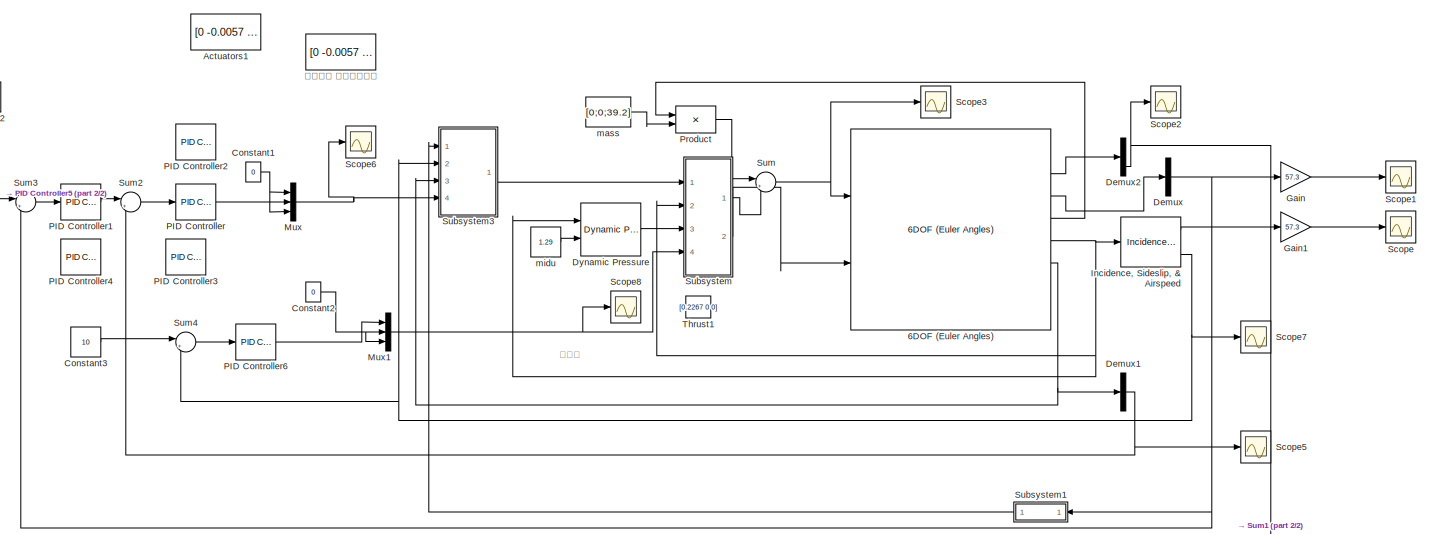
[diagram: root canvas - part 1/2, most of the canvas]
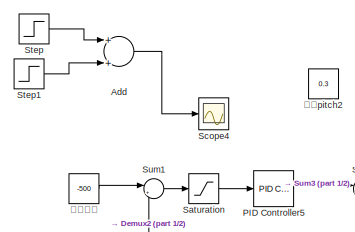
[diagram: root canvas - part 2/2, top left region]
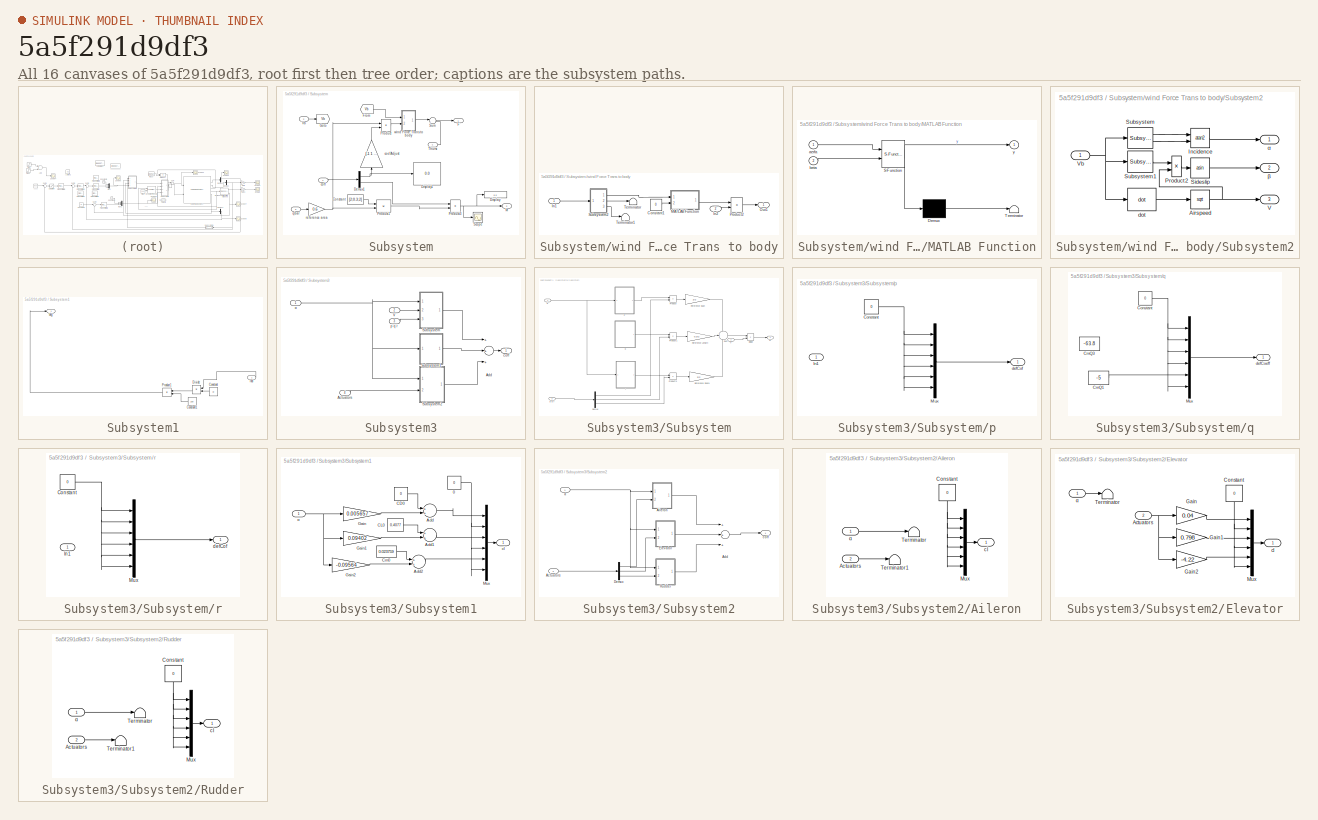
[diagram: thumbnail index - all 16 canvases of the model, root first then tree order]
MODEL slx_5a5f291d9df3
KIND model
CONFIG AbsTol = auto
CONFIG FixedStep = auto
CONFIG MaxStep = auto
CONFIG MinStep = auto
CONFIG RelTol = 1e-3
CONFIG SampleTimeConstraint = Unconstrained
CONFIG Solver = ode45
CONFIG SolverMode = Auto
CONFIG SolverName = ode45
CONFIG StartTime = 0.0
CONFIG StopTime = 1000
BLOCK [Reference] 6DOF (Euler Angles)  REF=aerolib6dof2/6DOF (Euler Angles)
  Ports = [2, 8]
  SourceBlock = aerolib6dof2/6DOF (Euler Angles)
  SourceType = 6DOF EoM (Body Axis)
BLOCK [Constant] Actuators1
  Value = [0 -0.0057 0]
BLOCK [Sum] Add
  InputSameDT = off
  OutDataTypeStr = Inherit: Inherit via internal rule
  Ports = [2, 1]
  SaturateOnIntegerOverflow = off
BLOCK [Constant] Constant1
  Value = 0
BLOCK [Constant] Constant2
  Value = 0
BLOCK [Constant] Constant3
  Value = 10
BLOCK [Demux] Demux
  DisplayOption = bar
  Outputs = 3
  Ports = [1, 3]
BLOCK [Demux] Demux1
  DisplayOption = bar
  Outputs = 3
  Ports = [1, 3]
BLOCK [Demux] Demux2
  DisplayOption = bar
  Outputs = 3
  Ports = [1, 3]
BLOCK [Reference] Dynamic Pressure  REF=aerolibasang/Dynamic Pressure
  Ports = [2, 1]
  SourceBlock = aerolibasang/Dynamic Pressure
  SourceType = Dynamic Pressure
BLOCK [Gain] Gain
  Commented = through
  Gain = 57.3
  OutDataTypeStr = Inherit: Inherit via internal rule
  ParamDataTypeStr = Inherit: Inherit via internal rule
  SaturateOnIntegerOverflow = off
BLOCK [Gain] Gain1
  Gain = 57.3
  OutDataTypeStr = Inherit: Inherit via internal rule
  ParamDataTypeStr = Inherit: Inherit via internal rule
  SaturateOnIntegerOverflow = off
BLOCK [Reference] Incidence, Sideslip, & Airspeed  REF=aerolibasang/Incidence, Sideslip,
& Airspeed
  Ports = [1, 3]
  SourceBlock = aerolibasang/Incidence, Sideslip,\n& Airspeed
  SourceType = Incidence,Sideslip,&Airspeed
BLOCK [Mux] Mux
  DisplayOption = bar
  Inputs = 3
  Ports = [3, 1]
BLOCK [Mux] Mux1
  DisplayOption = bar
  Inputs = 3
  Ports = [3, 1]
BLOCK [Reference] PID Controller  REF=simulink/Continuous/PID Controller
  Ports = [1, 1]
  SourceBlock = simulink/Continuous/PID Controller
  SourceType = PID 1dof
BLOCK [Reference] PID Controller1  REF=simulink/Continuous/PID Controller
  Ports = [1, 1]
  SourceBlock = simulink/Continuous/PID Controller
  SourceType = PID 1dof
BLOCK [Reference] PID Controller2  REF=simulink/Continuous/PID Controller
  Ports = [1, 1]
  SourceBlock = simulink/Continuous/PID Controller
  SourceType = PID 1dof
BLOCK [Reference] PID Controller3  REF=simulink/Continuous/PID Controller
  Ports = [1, 1]
  SourceBlock = simulink/Continuous/PID Controller
  SourceType = PID 1dof
BLOCK [Reference] PID Controller4  REF=simulink/Continuous/PID Controller
  Ports = [1, 1]
  SourceBlock = simulink/Continuous/PID Controller
  SourceType = PID 1dof
BLOCK [Reference] PID Controller5  REF=simulink/Continuous/PID Controller
  Ports = [1, 1]
  SourceBlock = simulink/Continuous/PID Controller
  SourceType = PID 1dof
BLOCK [Reference] PID Controller6  REF=simulink/Continuous/PID Controller
  Ports = [1, 1]
  SourceBlock = simulink/Continuous/PID Controller
  SourceType = PID 1dof
BLOCK [Product] Product
  InputSameDT = off
  Multiplication = Matrix(*)
  OutDataTypeStr = Inherit: Inherit via internal rule
  Ports = [2, 1]
  RndMeth = Floor
  SaturateOnIntegerOverflow = off
BLOCK [Saturate] Saturation
  InputPortMap = u0
  LowerLimit = -10
  Ports = [1, 1]
  UpperLimit = 10
BLOCK [Scope] Scope
  Ports = [1]
  ScopeSpecificationString = Simulink.scopes.TimeScopeBlockCfg('CurrentConfiguration', extmgr.ConfigurationSet(extmgr.Configuration('Core','General UI',true),extmgr.Configuration('Core','Source UI',true),extmgr.Configuration('Sources','WiredSimulink',true,'DataLoggingSaveFormat','Array','DataLoggingDecimation','1','DataLoggingDecimateData',true),extmgr.Configuration('Visuals','Time Domain',true,'SerializedDisplays',{struct('M...<+1651ch>
BLOCK [Scope] Scope1
  Ports = [1]
  ScopeSpecificationString = Simulink.scopes.TimeScopeBlockCfg('CurrentConfiguration', extmgr.ConfigurationSet(extmgr.Configuration('Core','General UI',true),extmgr.Configuration('Core','Source UI',true),extmgr.Configuration('Sources','WiredSimulink',true,'DataLoggingVariableName','ScopeData1','DataLoggingSaveFormat','Array','DataLoggingDecimation','1','DataLoggingDecimateData',true),extmgr.Configuration('Visuals','Time Domai...<+1684ch>
BLOCK [Scope] Scope2
  Ports = [1]
  ScopeSpecificationString = Simulink.scopes.TimeScopeBlockCfg('CurrentConfiguration', extmgr.ConfigurationSet(extmgr.Configuration('Core','General UI',true),extmgr.Configuration('Core','Source UI',true),extmgr.Configuration('Sources','WiredSimulink',true,'DataLoggingVariableName','ScopeData2','DataLoggingSaveFormat','Array','DataLoggingDecimation','1','DataLoggingDecimateData',true),extmgr.Configuration('Visuals','Time Domai...<+1740ch>
BLOCK [Scope] Scope3
  Ports = [1]
  ScopeSpecificationString = Simulink.scopes.TimeScopeBlockCfg('CurrentConfiguration', extmgr.ConfigurationSet(extmgr.Configuration('Core','General UI',true),extmgr.Configuration('Core','Source UI',true),extmgr.Configuration('Sources','WiredSimulink',true,'DataLoggingVariableName','ScopeData3','DataLoggingSaveFormat','Array','DataLoggingDecimation','1','DataLoggingDecimateData',true),extmgr.Configuration('Visuals','Time Domai...<+1692ch>
BLOCK [Scope] Scope4
  Ports = [1]
  ScopeSpecificationString = C++SS(StrPVP('Location','[347, 233, 812, 511]'),StrPVP('Open','off'),MxPVP('AxesTitles',24,'struct(''axes1'',''%<SignalLabel>'')'),MxPVP('ScopeGraphics',28,'struct(''FigureColor'',''[0.5 0.5 0.5]'',''AxesColor'',''[0 0 0]'',''AxesTickColor'',''[1 1 1]'',''LineColors'',''[1 1 0;1 0 1;0 1 1;1 0 0;0 1 0;0 0 1]'',''LineStyles'',''-|-|-|-|-|-'',''LineWidths'',''[0.5 0.5 0.5 0.5 0.5 0.5]'',''MarkerStyle...<+268ch>
BLOCK [Scope] Scope5
  Ports = [1]
  ScopeSpecificationString = Simulink.scopes.TimeScopeBlockCfg('CurrentConfiguration', extmgr.ConfigurationSet(extmgr.Configuration('Core','General UI',true),extmgr.Configuration('Core','Source UI',true),extmgr.Configuration('Sources','WiredSimulink',true,'DataLoggingSaveFormat','Array','DataLoggingDecimation','1','DataLoggingDecimateData',true,'DataLoggingVariableName','ScopeData6'),extmgr.Configuration('Visuals','Time Domai...<+1677ch>
BLOCK [Scope] Scope6
  Ports = [1]
  ScopeSpecificationString = Simulink.scopes.TimeScopeBlockCfg('CurrentConfiguration', extmgr.ConfigurationSet(extmgr.Configuration('Core','General UI',true),extmgr.Configuration('Core','Source UI',true),extmgr.Configuration('Sources','WiredSimulink',true,'DataLoggingVariableName','ScopeData7','DataLoggingSaveFormat','Array','DataLoggingDecimation','1','DataLoggingDecimateData',true),extmgr.Configuration('Visuals','Time Domai...<+1709ch>
BLOCK [Scope] Scope7
  Ports = [1]
  ScopeSpecificationString = Simulink.scopes.TimeScopeBlockCfg('CurrentConfiguration', extmgr.ConfigurationSet(extmgr.Configuration('Core','General UI',true),extmgr.Configuration('Core','Source UI',true),extmgr.Configuration('Sources','WiredSimulink',true,'DataLoggingSaveFormat','Array','DataLoggingDecimation','1','DataLoggingDecimateData',true,'DataLoggingVariableName','ScopeData8'),extmgr.Configuration('Visuals','Time Domai...<+1708ch>
BLOCK [Scope] Scope8
  Ports = [1]
  ScopeSpecificationString = Simulink.scopes.TimeScopeBlockCfg('CurrentConfiguration', extmgr.ConfigurationSet(extmgr.Configuration('Core','General UI',true),extmgr.Configuration('Core','Source UI',true),extmgr.Configuration('Sources','WiredSimulink',true,'DataLoggingVariableName','ScopeData1','DataLoggingSaveFormat','Array','DataLoggingDecimation','1','DataLoggingDecimateData',true),extmgr.Configuration('Visuals','Time Domai...<+1716ch>
BLOCK [Step] Step
  After = 0.1
  SampleTime = 0
  Time = 2
BLOCK [Step] Step1
  After = -0.1
  SampleTime = 0
  Time = 2.1
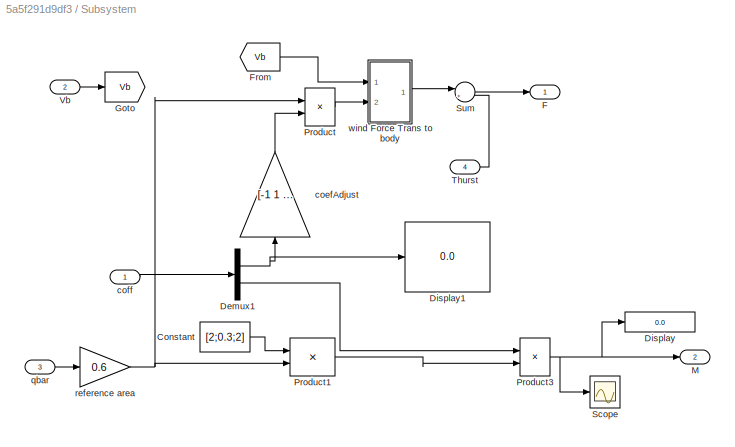
BLOCK [SubSystem] Subsystem
  Ports = [4, 2]
  RequestExecContextInheritance = off
  Variant = off
BLOCK [Constant] Subsystem/Constant
  Value = [2;0.3;2]
BLOCK [Demux] Subsystem/Demux1
  Outputs = [3,3]
  Ports = [1, 2]
BLOCK [Display] Subsystem/Display
  Decimation = 1
  Ports = [1]
BLOCK [Display] Subsystem/Display1
  Decimation = 1
  Ports = [1]
BLOCK [Outport] Subsystem/F
  IconDisplay = Port number
BLOCK [From] Subsystem/From
  CloseFcn = tagdialog Close
  GotoTag = Vb
BLOCK [Goto] Subsystem/Goto
  GotoTag = Vb
BLOCK [Outport] Subsystem/M
  IconDisplay = Port number
  Port = 2
BLOCK [Product] Subsystem/Product
  Ports = [2, 1]
  RndMeth = Floor
BLOCK [Product] Subsystem/Product1
  Ports = [2, 1]
  RndMeth = Floor
BLOCK [Product] Subsystem/Product3
  Ports = [2, 1]
  RndMeth = Floor
BLOCK [Scope] Subsystem/Scope
  Ports = [1]
  ScopeSpecificationString = C++SS(StrPVP('Location','[341, 288, 1096, 622]'),StrPVP('Open','off'),MxPVP('AxesTitles',24,'struct(''axes1'',''%<SignalLabel>'')'),MxPVP('ScopeGraphics',28,'struct(''FigureColor'',''[0.5 0.5 0.5]'',''AxesColor'',''[0 0 0]'',''AxesTickColor'',''[1 1 1]'',''LineColors'',''[1 1 0;1 0 1;0 1 1;1 0 0;0 1 0;0 0 1]'',''LineStyles'',''-|-|-|-|-|-'',''LineWidths'',''[0.5 0.5 0.5 0.5 0.5 0.5]'',''MarkerStyl...<+268ch>
BLOCK [Sum] Subsystem/Sum
  IconShape = round
  InputSameDT = off
  Inputs = |++
  OutDataTypeStr = Inherit: Inherit via internal rule
  Ports = [2, 1]
  SaturateOnIntegerOverflow = off
BLOCK [Inport] Subsystem/Thurst
  IconDisplay = Port number
  Port = 4
BLOCK [Inport] Subsystem/Vb
  IconDisplay = Port number
  Port = 2
BLOCK [Gain] Subsystem/coefAdjust
  Gain = [-1  1  -1]
  OutDataTypeStr = Inherit: Inherit via internal rule
  ParamDataTypeStr = Inherit: Inherit via internal rule
  SaturateOnIntegerOverflow = off
BLOCK [Inport] Subsystem/coff
  IconDisplay = Port number
BLOCK [Inport] Subsystem/qbar
  IconDisplay = Port number
  Port = 3
BLOCK [Gain] Subsystem/reference area
  Gain = 0.6
BLOCK [SubSystem] Subsystem/wind Force Trans to body
  Ports = [2, 1]
  RequestExecContextInheritance = off
  Variant = off
BLOCK [Constant] Subsystem/wind Force Trans to body/Constant1
  Value = 0
BLOCK [Inport] Subsystem/wind Force Trans to body/In1
  IconDisplay = Port number
BLOCK [Inport] Subsystem/wind Force Trans to body/In2
  IconDisplay = Port number
  Port = 2
BLOCK [SubSystem] Subsystem/wind Force Trans to body/MATLAB Function
  ErrorFcn = Stateflow.Translate.translate
  PermitHierarchicalResolution = ExplicitOnly
  Ports = [2, 1]
  RequestExecContextInheritance = off
  SFBlockType = MATLAB Function
  TreatAsAtomicUnit = on
  Variant = off
BLOCK [Demux] Subsystem/wind Force Trans to body/MATLAB Function/ Demux 
  Outputs = 1
  Ports = [1, 1]
BLOCK [S-Function] Subsystem/wind Force Trans to body/MATLAB Function/ SFunction 
  EnableBusSupport = on
  FunctionName = sf_sfun
  PortCounts = [2 2]
  Ports = [2, 2]
  SFunctionDeploymentMode = off
  Tag = Stateflow S-Function aircraft_fixd 2
BLOCK [Terminator] Subsystem/wind Force Trans to body/MATLAB Function/ Terminator 
BLOCK [Inport] Subsystem/wind Force Trans to body/MATLAB Function/aerfa
  IconDisplay = Port number
BLOCK [Inport] Subsystem/wind Force Trans to body/MATLAB Function/beta
  IconDisplay = Port number
  Port = 2
BLOCK [Outport] Subsystem/wind Force Trans to body/MATLAB Function/y
  IconDisplay = Port number
BLOCK [Outport] Subsystem/wind Force Trans to body/Out1
  IconDisplay = Port number
BLOCK [Product] Subsystem/wind Force Trans to body/Product2
  Multiplication = Matrix(*)
  Ports = [2, 1]
  RndMeth = Floor
BLOCK [SubSystem] Subsystem/wind Force Trans to body/Subsystem2
  Ports = [1, 3]
  RequestExecContextInheritance = off
  Variant = off
BLOCK [Sqrt] Subsystem/wind Force Trans to body/Subsystem2/Airspeed
  AlgorithmType = Newton-Raphson
BLOCK [Trigonometry] Subsystem/wind Force Trans to body/Subsystem2/Incidence
  Operator = atan2
  Ports = [2, 1]
BLOCK [Product] Subsystem/wind Force Trans to body/Subsystem2/Product2
  InputSameDT = off
  Inputs = */
  Ports = [2, 1]
  RndMeth = Floor
BLOCK [Trigonometry] Subsystem/wind Force Trans to body/Subsystem2/Sideslip
  Operator = asin
  Ports = [1, 1]
BLOCK [Reference] Subsystem/wind Force Trans to body/Subsystem2/Subsystem  REF=aerolibasang/Incidence, Sideslip,
& Airspeed/Subsystem
  Ports = [1, 2]
  SourceBlock = aerolibasang/Incidence, Sideslip,\n& Airspeed/Subsystem
  SourceType = SubSystem
BLOCK [Reference] Subsystem/wind Force Trans to body/Subsystem2/Subsystem1  REF=aerolibasang/Incidence, Sideslip,
& Airspeed/Subsystem1
  Ports = [1, 1]
  SourceBlock = aerolibasang/Incidence, Sideslip,\n& Airspeed/Subsystem1
  SourceType = SubSystem
BLOCK [Outport] Subsystem/wind Force Trans to body/Subsystem2/V
  IconDisplay = Port number
  Port = 3
BLOCK [Inport] Subsystem/wind Force Trans to body/Subsystem2/Vb
  IconDisplay = Port number
BLOCK [Reference] Subsystem/wind Force Trans to body/Subsystem2/dot  REF=aerolibasang/Incidence, Sideslip,
& Airspeed/dot
  Ports = [1, 1]
  SourceBlock = aerolibasang/Incidence, Sideslip,\n& Airspeed/dot
  SourceType = SubSystem
BLOCK [Outport] Subsystem/wind Force Trans to body/Subsystem2/α
  IconDisplay = Port number
BLOCK [Outport] Subsystem/wind Force Trans to body/Subsystem2/β
  IconDisplay = Port number
  Port = 2
BLOCK [Terminator] Subsystem/wind Force Trans to body/Terminator
BLOCK [Terminator] Subsystem/wind Force Trans to body/Terminator1
BLOCK [SubSystem] Subsystem1
  Ports = [1, 1]
  RequestExecContextInheritance = off
  Variant = off
BLOCK [Constant] Subsystem1/Constant
  Value = pi
BLOCK [Constant] Subsystem1/Constant1
  Value = 180
BLOCK [Product] Subsystem1/Divide
  InputSameDT = off
  Inputs = */
  OutDataTypeStr = Inherit: Inherit via internal rule
  Ports = [2, 1]
  RndMeth = Floor
  SaturateOnIntegerOverflow = off
BLOCK [Product] Subsystem1/Product1
  InputSameDT = off
  OutDataTypeStr = Inherit: Inherit via internal rule
  Ports = [2, 1]
  RndMeth = Floor
  SaturateOnIntegerOverflow = off
BLOCK [Outport] Subsystem1/deg
  IconDisplay = Port number
BLOCK [Inport] Subsystem1/rad
  IconDisplay = Port number
BLOCK [SubSystem] Subsystem3
  Ports = [4, 1]
  RequestExecContextInheritance = off
  Variant = off
BLOCK [Inport] Subsystem3/Actuators
  IconDisplay = Port number
  Port = 4
BLOCK [Sum] Subsystem3/Add
  InputSameDT = off
  Inputs = +++
  OutDataTypeStr = Inherit: Inherit via internal rule
  Ports = [3, 1]
  SaturateOnIntegerOverflow = off
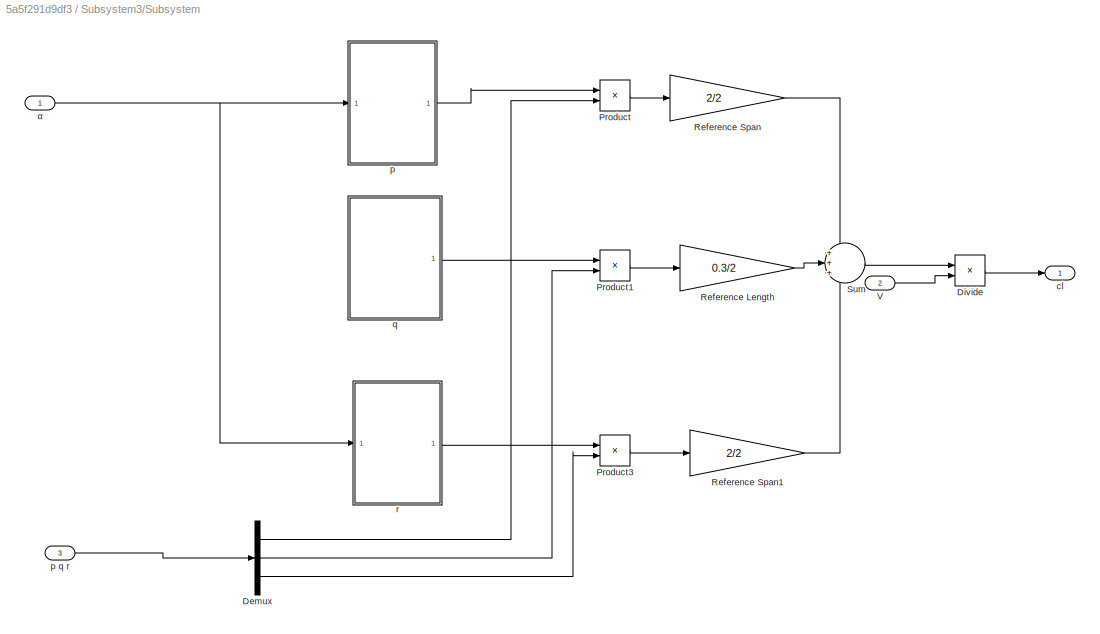
BLOCK [SubSystem] Subsystem3/Subsystem
  Ports = [3, 1]
  RequestExecContextInheritance = off
  Variant = off
BLOCK [Demux] Subsystem3/Subsystem/Demux
  DisplayOption = bar
  Outputs = 3
  Ports = [1, 3]
BLOCK [Product] Subsystem3/Subsystem/Divide
  InputSameDT = off
  Inputs = */
  OutDataTypeStr = Inherit: Inherit via internal rule
  Ports = [2, 1]
  RndMeth = Floor
  SaturateOnIntegerOverflow = off
BLOCK [Product] Subsystem3/Subsystem/Product
  InputSameDT = off
  OutDataTypeStr = Inherit: Inherit via internal rule
  Ports = [2, 1]
  RndMeth = Floor
  SaturateOnIntegerOverflow = off
BLOCK [Product] Subsystem3/Subsystem/Product1
  InputSameDT = off
  OutDataTypeStr = Inherit: Inherit via internal rule
  Ports = [2, 1]
  RndMeth = Floor
  SaturateOnIntegerOverflow = off
BLOCK [Product] Subsystem3/Subsystem/Product3
  InputSameDT = off
  OutDataTypeStr = Inherit: Inherit via internal rule
  Ports = [2, 1]
  RndMeth = Floor
  SaturateOnIntegerOverflow = off
BLOCK [Gain] Subsystem3/Subsystem/Reference Length
  Gain = 0.3/2
  OutDataTypeStr = Inherit: Inherit via internal rule
  ParamDataTypeStr = Inherit: Inherit via internal rule
  SaturateOnIntegerOverflow = off
BLOCK [Gain] Subsystem3/Subsystem/Reference Span
  Gain = 2/2
  OutDataTypeStr = Inherit: Inherit via internal rule
  ParamDataTypeStr = Inherit: Inherit via internal rule
  SaturateOnIntegerOverflow = off
BLOCK [Gain] Subsystem3/Subsystem/Reference Span1
  Gain = 2/2
  OutDataTypeStr = Inherit: Inherit via internal rule
  ParamDataTypeStr = Inherit: Inherit via internal rule
  SaturateOnIntegerOverflow = off
BLOCK [Sum] Subsystem3/Subsystem/Sum
  IconShape = round
  InputSameDT = off
  Inputs = +++
  OutDataTypeStr = Inherit: Inherit via internal rule
  Ports = [3, 1]
  SaturateOnIntegerOverflow = off
BLOCK [Inport] Subsystem3/Subsystem/V
  IconDisplay = Port number
  Port = 2
BLOCK [Outport] Subsystem3/Subsystem/cl
  IconDisplay = Port number
BLOCK [SubSystem] Subsystem3/Subsystem/p
  Ports = [1, 1]
  RequestExecContextInheritance = off
  Variant = off
BLOCK [Inport] Subsystem3/Subsystem/p q r
  IconDisplay = Port number
  Port = 3
BLOCK [Constant] Subsystem3/Subsystem/p/Constant
  Value = 0
BLOCK [Inport] Subsystem3/Subsystem/p/In1
  IconDisplay = Port number
BLOCK [Mux] Subsystem3/Subsystem/p/Mux
  DisplayOption = bar
  Inputs = 6
  Ports = [6, 1]
BLOCK [Outport] Subsystem3/Subsystem/p/defCof
  IconDisplay = Port number
BLOCK [SubSystem] Subsystem3/Subsystem/q
  Ports = [0, 1]
  RequestExecContextInheritance = off
  Variant = off
BLOCK [Constant] Subsystem3/Subsystem/q/CmQ1
  Value = -5
BLOCK [Constant] Subsystem3/Subsystem/q/CmQ3
  Value = -63.8
BLOCK [Constant] Subsystem3/Subsystem/q/Constant
  Value = 0
BLOCK [Mux] Subsystem3/Subsystem/q/Mux
  DisplayOption = bar
  Inputs = 6
  Ports = [6, 1]
BLOCK [Outport] Subsystem3/Subsystem/q/defCoeff
  IconDisplay = Port number
BLOCK [SubSystem] Subsystem3/Subsystem/r
  Ports = [1, 1]
  RequestExecContextInheritance = off
  Variant = off
BLOCK [Constant] Subsystem3/Subsystem/r/Constant
  Value = 0
BLOCK [Inport] Subsystem3/Subsystem/r/In1
  IconDisplay = Port number
BLOCK [Mux] Subsystem3/Subsystem/r/Mux
  DisplayOption = bar
  Inputs = 6
  Ports = [6, 1]
BLOCK [Outport] Subsystem3/Subsystem/r/defCof
  IconDisplay = Port number
BLOCK [Inport] Subsystem3/Subsystem/α
  IconDisplay = Port number
BLOCK [SubSystem] Subsystem3/Subsystem1
  Ports = [1, 1]
  RequestExecContextInheritance = off
  Variant = off
BLOCK [Constant] Subsystem3/Subsystem1/0
  Value = 0
BLOCK [Sum] Subsystem3/Subsystem1/Add
  InputSameDT = off
  OutDataTypeStr = Inherit: Inherit via internal rule
  Ports = [2, 1]
  SaturateOnIntegerOverflow = off
BLOCK [Sum] Subsystem3/Subsystem1/Add1
  InputSameDT = off
  OutDataTypeStr = Inherit: Inherit via internal rule
  Ports = [2, 1]
  SaturateOnIntegerOverflow = off
BLOCK [Sum] Subsystem3/Subsystem1/Add2
  InputSameDT = off
  OutDataTypeStr = Inherit: Inherit via internal rule
  Ports = [2, 1]
  SaturateOnIntegerOverflow = off
BLOCK [Constant] Subsystem3/Subsystem1/CD0
  Value = 0
BLOCK [Constant] Subsystem3/Subsystem1/CL0
  Value = 0.4077
BLOCK [Constant] Subsystem3/Subsystem1/Cm0
  Value = 0.023759
BLOCK [Gain] Subsystem3/Subsystem1/Gain
  Gain = 0.005657
  OutDataTypeStr = Inherit: Inherit via internal rule
  ParamDataTypeStr = Inherit: Inherit via internal rule
  SaturateOnIntegerOverflow = off
BLOCK [Gain] Subsystem3/Subsystem1/Gain1
  Gain = 0.09402
  OutDataTypeStr = Inherit: Inherit via internal rule
  ParamDataTypeStr = Inherit: Inherit via internal rule
  SaturateOnIntegerOverflow = off
BLOCK [Gain] Subsystem3/Subsystem1/Gain2
  Gain = -0.09564
  OutDataTypeStr = Inherit: Inherit via internal rule
  ParamDataTypeStr = Inherit: Inherit via internal rule
  SaturateOnIntegerOverflow = off
BLOCK [Mux] Subsystem3/Subsystem1/Mux
  DisplayOption = bar
  Inputs = 6
  Ports = [6, 1]
BLOCK [Outport] Subsystem3/Subsystem1/cl
  IconDisplay = Port number
BLOCK [Inport] Subsystem3/Subsystem1/α
  IconDisplay = Port number
BLOCK [SubSystem] Subsystem3/Subsystem2
  Ports = [2, 1]
  RequestExecContextInheritance = off
  Variant = off
BLOCK [Inport] Subsystem3/Subsystem2/Actuators
  IconDisplay = Port number
  Port = 2
BLOCK [Sum] Subsystem3/Subsystem2/Add
  InputSameDT = off
  Inputs = +++
  OutDataTypeStr = Inherit: Inherit via internal rule
  Ports = [3, 1]
  SaturateOnIntegerOverflow = off
BLOCK [SubSystem] Subsystem3/Subsystem2/Aileron
  Ports = [2, 1]
  RequestExecContextInheritance = off
  Variant = off
BLOCK [Inport] Subsystem3/Subsystem2/Aileron/Actuators
  IconDisplay = Port number
  Port = 2
BLOCK [Constant] Subsystem3/Subsystem2/Aileron/Constant
  Value = 0
BLOCK [Mux] Subsystem3/Subsystem2/Aileron/Mux
  DisplayOption = bar
  Inputs = 6
  Ports = [6, 1]
BLOCK [Terminator] Subsystem3/Subsystem2/Aileron/Terminator
BLOCK [Terminator] Subsystem3/Subsystem2/Aileron/Terminator1
BLOCK [Outport] Subsystem3/Subsystem2/Aileron/cl
  IconDisplay = Port number
BLOCK [Inport] Subsystem3/Subsystem2/Aileron/α
  IconDisplay = Port number
BLOCK [Demux] Subsystem3/Subsystem2/Demux
  DisplayOption = bar
  Outputs = 3
  Ports = [1, 3]
BLOCK [SubSystem] Subsystem3/Subsystem2/Elevator
  Ports = [2, 1]
  RequestExecContextInheritance = off
  Variant = off
BLOCK [Inport] Subsystem3/Subsystem2/Elevator/Actuators
  IconDisplay = Port number
  Port = 2
BLOCK [Constant] Subsystem3/Subsystem2/Elevator/Constant
  Value = 0
BLOCK [Gain] Subsystem3/Subsystem2/Elevator/Gain
  Gain = 0.04
  OutDataTypeStr = Inherit: Inherit via internal rule
  ParamDataTypeStr = Inherit: Inherit via internal rule
  SaturateOnIntegerOverflow = off
BLOCK [Gain] Subsystem3/Subsystem2/Elevator/Gain1
  Gain = 0.798
  OutDataTypeStr = Inherit: Inherit via internal rule
  ParamDataTypeStr = Inherit: Inherit via internal rule
  SaturateOnIntegerOverflow = off
BLOCK [Gain] Subsystem3/Subsystem2/Elevator/Gain2
  Gain = -4.22
  OutDataTypeStr = Inherit: Inherit via internal rule
  ParamDataTypeStr = Inherit: Inherit via internal rule
  SaturateOnIntegerOverflow = off
BLOCK [Mux] Subsystem3/Subsystem2/Elevator/Mux
  DisplayOption = bar
  Inputs = 6
  Ports = [6, 1]
BLOCK [Terminator] Subsystem3/Subsystem2/Elevator/Terminator
BLOCK [Outport] Subsystem3/Subsystem2/Elevator/cl
  IconDisplay = Port number
BLOCK [Inport] Subsystem3/Subsystem2/Elevator/α
  IconDisplay = Port number
BLOCK [SubSystem] Subsystem3/Subsystem2/Rudder
  Ports = [2, 1]
  RequestExecContextInheritance = off
  Variant = off
BLOCK [Inport] Subsystem3/Subsystem2/Rudder/Actuators
  IconDisplay = Port number
  Port = 2
BLOCK [Constant] Subsystem3/Subsystem2/Rudder/Constant
  Value = 0
BLOCK [Mux] Subsystem3/Subsystem2/Rudder/Mux
  DisplayOption = bar
  Inputs = 6
  Ports = [6, 1]
BLOCK [Terminator] Subsystem3/Subsystem2/Rudder/Terminator
BLOCK [Terminator] Subsystem3/Subsystem2/Rudder/Terminator1
BLOCK [Outport] Subsystem3/Subsystem2/Rudder/cl
  IconDisplay = Port number
BLOCK [Inport] Subsystem3/Subsystem2/Rudder/α
  IconDisplay = Port number
BLOCK [Outport] Subsystem3/Subsystem2/coff
  IconDisplay = Port number
BLOCK [Inport] Subsystem3/Subsystem2/α
  IconDisplay = Port number
BLOCK [Inport] Subsystem3/V
  IconDisplay = Port number
  Port = 2
BLOCK [Outport] Subsystem3/coff
  IconDisplay = Port number
BLOCK [Inport] Subsystem3/p q r
  IconDisplay = Port number
  Port = 3
BLOCK [Inport] Subsystem3/α
  IconDisplay = Port number
BLOCK [Sum] Sum
  IconShape = round
  InputSameDT = off
  Inputs = |++
  OutDataTypeStr = Inherit: Inherit via internal rule
  Ports = [2, 1]
  SaturateOnIntegerOverflow = off
BLOCK [Sum] Sum1
  IconShape = round
  InputSameDT = off
  Inputs = |+-
  OutDataTypeStr = Inherit: Inherit via internal rule
  Ports = [2, 1]
  SaturateOnIntegerOverflow = off
BLOCK [Sum] Sum2
  IconShape = round
  InputSameDT = off
  Inputs = |+-
  OutDataTypeStr = Inherit: Inherit via internal rule
  Ports = [2, 1]
  SaturateOnIntegerOverflow = off
BLOCK [Sum] Sum3
  IconShape = round
  InputSameDT = off
  Inputs = |+-
  OutDataTypeStr = Inherit: Inherit via internal rule
  Ports = [2, 1]
  SaturateOnIntegerOverflow = off
BLOCK [Sum] Sum4
  IconShape = round
  InputSameDT = off
  Inputs = |+-
  OutDataTypeStr = Inherit: Inherit via internal rule
  Ports = [2, 1]
  SaturateOnIntegerOverflow = off
BLOCK [Constant] Thrust1
  Value = [0.2267 0 0]
BLOCK [Constant] mass
  Value = [0;0;39.2]
BLOCK [Constant] midu
  Value = 1.29
BLOCK [Constant] 平衡舵量 副翼升降偏航
  Value = [0 -0.0057 0]
BLOCK [Constant] 期望pitch2
  Value = 0.3
BLOCK [Constant] 期望高度
  Value = -500
ANNOTATION (root): 加推力
LINE 6DOF (Euler Angles):2 -> Demux2:1
LINE 6DOF (Euler Angles):3 -> Demux:1
LINE 6DOF (Euler Angles):4 -> Product:1
NET 6DOF (Euler Angles):5 -> Dynamic Pressure:1, Incidence, Sideslip, & Airspeed:1, Subsystem:2
NET 6DOF (Euler Angles):6 -> Demux1:1, Subsystem3:3
LINE Add:1 -> Scope4:1
NET Constant1:1 -> Mux:1, Mux:3
NET Constant2:1 -> Mux1:2, Mux1:3
LINE Constant3:1 -> Sum4:1
NET Demux1:2 -> Scope5:1, Sum2:2
NET Demux2:3 -> Scope2:1, Sum1:2
NET Demux:2 -> Gain:1, Subsystem1:1, Sum3:2
LINE Dynamic Pressure:1 -> Subsystem:3
LINE Gain1:1 -> Scope:1
LINE Gain:1 -> Scope1:1
LINE Incidence, Sideslip, & Airspeed:1 -> Gain1:1
NET Incidence, Sideslip, & Airspeed:3 -> Scope7:1, Subsystem3:2, Sum4:2
NET Mux1:1 -> Scope8:1, Subsystem:4
NET Mux:1 -> Scope6:1, Subsystem3:4
LINE PID Controller1:1 -> Sum2:1
LINE PID Controller5:1 -> Sum3:1
LINE PID Controller6:1 -> Mux1:1
LINE PID Controller:1 -> Mux:2
LINE Product:1 -> Sum:1
LINE Saturation:1 -> PID Controller5:1
LINE Step1:1 -> Add:2
LINE Step:1 -> Add:1
LINE Subsystem/Constant:1 -> Subsystem/Product1:1
NET Subsystem/Demux1:1 -> Subsystem/Display1:1, Subsystem/coefAdjust:1
LINE Subsystem/Demux1:2 -> Subsystem/Product3:1
LINE Subsystem/From:1 -> Subsystem/wind Force Trans to body:1
LINE Subsystem/Product1:1 -> Subsystem/Product3:2
NET Subsystem/Product3:1 -> Subsystem/Display:1, Subsystem/M:1, Subsystem/Scope:1
LINE Subsystem/Product:1 -> Subsystem/wind Force Trans to body:2
LINE Subsystem/Sum:1 -> Subsystem/F:1
LINE Subsystem/Thurst:1 -> Subsystem/Sum:2
LINE Subsystem/Vb:1 -> Subsystem/Goto:1
LINE Subsystem/coefAdjust:1 -> Subsystem/Product:2
LINE Subsystem/coff:1 -> Subsystem/Demux1:1
LINE Subsystem/qbar:1 -> Subsystem/reference area:1
NET Subsystem/reference area:1 -> Subsystem/Product1:2, Subsystem/Product:1
LINE Subsystem/wind Force Trans to body/Constant1:1 -> Subsystem/wind Force Trans to body/MATLAB Function:2
LINE Subsystem/wind Force Trans to body/In1:1 -> Subsystem/wind Force Trans to body/Subsystem2:1
LINE Subsystem/wind Force Trans to body/In2:1 -> Subsystem/wind Force Trans to body/Product2:2
LINE Subsystem/wind Force Trans to body/MATLAB Function:1 -> Subsystem/wind Force Trans to body/Product2:1
LINE Subsystem/wind Force Trans to body/Product2:1 -> Subsystem/wind Force Trans to body/Out1:1
NET Subsystem/wind Force Trans to body/Subsystem2/Airspeed:1 -> Subsystem/wind Force Trans to body/Subsystem2/Product2:2, Subsystem/wind Force Trans to body/Subsystem2/V:1
LINE Subsystem/wind Force Trans to body/Subsystem2/Incidence:1 -> Subsystem/wind Force Trans to body/Subsystem2/α:1
LINE Subsystem/wind Force Trans to body/Subsystem2/Product2:1 -> Subsystem/wind Force Trans to body/Subsystem2/Sideslip:1
LINE Subsystem/wind Force Trans to body/Subsystem2/Sideslip:1 -> Subsystem/wind Force Trans to body/Subsystem2/β:1
LINE Subsystem/wind Force Trans to body/Subsystem2/Subsystem1:1 -> Subsystem/wind Force Trans to body/Subsystem2/Product2:1
LINE Subsystem/wind Force Trans to body/Subsystem2/Subsystem:1 -> Subsystem/wind Force Trans to body/Subsystem2/Incidence:1
LINE Subsystem/wind Force Trans to body/Subsystem2/Subsystem:2 -> Subsystem/wind Force Trans to body/Subsystem2/Incidence:2
NET Subsystem/wind Force Trans to body/Subsystem2/Vb:1 -> Subsystem/wind Force Trans to body/Subsystem2/Subsystem1:1, Subsystem/wind Force Trans to body/Subsystem2/Subsystem:1, Subsystem/wind Force Trans to body/Subsystem2/dot:1
LINE Subsystem/wind Force Trans to body/Subsystem2/dot:1 -> Subsystem/wind Force Trans to body/Subsystem2/Airspeed:1
LINE Subsystem/wind Force Trans to body/Subsystem2:1 -> Subsystem/wind Force Trans to body/MATLAB Function:1
LINE Subsystem/wind Force Trans to body/Subsystem2:2 -> Subsystem/wind Force Trans to body/Terminator:1
LINE Subsystem/wind Force Trans to body/Subsystem2:3 -> Subsystem/wind Force Trans to body/Terminator1:1
LINE Subsystem/wind Force Trans to body:1 -> Subsystem/Sum:1
LINE Subsystem1/Constant1:1 -> Subsystem1/Product1:2
LINE Subsystem1/Constant:1 -> Subsystem1/Divide:2
LINE Subsystem1/Divide:1 -> Subsystem1/Product1:1
LINE Subsystem1/Product1:1 -> Subsystem1/deg:1
LINE Subsystem1/rad:1 -> Subsystem1/Divide:1
LINE Subsystem1:1 -> Subsystem3:1
LINE Subsystem3/Actuators:1 -> Subsystem3/Subsystem2:2
LINE Subsystem3/Add:1 -> Subsystem3/coff:1
LINE Subsystem3/Subsystem/Demux:1 -> Subsystem3/Subsystem/Product:2
LINE Subsystem3/Subsystem/Demux:2 -> Subsystem3/Subsystem/Product1:2
LINE Subsystem3/Subsystem/Demux:3 -> Subsystem3/Subsystem/Product3:2
LINE Subsystem3/Subsystem/Divide:1 -> Subsystem3/Subsystem/cl:1
LINE Subsystem3/Subsystem/Product1:1 -> Subsystem3/Subsystem/Reference Length:1
LINE Subsystem3/Subsystem/Product3:1 -> Subsystem3/Subsystem/Reference Span1:1
LINE Subsystem3/Subsystem/Product:1 -> Subsystem3/Subsystem/Reference Span:1
LINE Subsystem3/Subsystem/Reference Length:1 -> Subsystem3/Subsystem/Sum:2
LINE Subsystem3/Subsystem/Reference Span1:1 -> Subsystem3/Subsystem/Sum:3
LINE Subsystem3/Subsystem/Reference Span:1 -> Subsystem3/Subsystem/Sum:1
LINE Subsystem3/Subsystem/Sum:1 -> Subsystem3/Subsystem/Divide:1
LINE Subsystem3/Subsystem/V:1 -> Subsystem3/Subsystem/Divide:2
LINE Subsystem3/Subsystem/p q r:1 -> Subsystem3/Subsystem/Demux:1
NET Subsystem3/Subsystem/p/Constant:1 -> Subsystem3/Subsystem/p/Mux:1, Subsystem3/Subsystem/p/Mux:2, Subsystem3/Subsystem/p/Mux:3, Subsystem3/Subsystem/p/Mux:4, Subsystem3/Subsystem/p/Mux:5, Subsystem3/Subsystem/p/Mux:6
LINE Subsystem3/Subsystem/p/Mux:1 -> Subsystem3/Subsystem/p/defCof:1
LINE Subsystem3/Subsystem/p:1 -> Subsystem3/Subsystem/Product:1
LINE Subsystem3/Subsystem/q/CmQ1:1 -> Subsystem3/Subsystem/q/Mux:5
NET Subsystem3/Subsystem/q/Constant:1 -> Subsystem3/Subsystem/q/Mux:1, Subsystem3/Subsystem/q/Mux:2, Subsystem3/Subsystem/q/Mux:3, Subsystem3/Subsystem/q/Mux:4, Subsystem3/Subsystem/q/Mux:6
LINE Subsystem3/Subsystem/q/Mux:1 -> Subsystem3/Subsystem/q/defCoeff:1
LINE Subsystem3/Subsystem/q:1 -> Subsystem3/Subsystem/Product1:1
NET Subsystem3/Subsystem/r/Constant:1 -> Subsystem3/Subsystem/r/Mux:1, Subsystem3/Subsystem/r/Mux:2, Subsystem3/Subsystem/r/Mux:3, Subsystem3/Subsystem/r/Mux:4, Subsystem3/Subsystem/r/Mux:5, Subsystem3/Subsystem/r/Mux:6
LINE Subsystem3/Subsystem/r/Mux:1 -> Subsystem3/Subsystem/r/defCof:1
LINE Subsystem3/Subsystem/r:1 -> Subsystem3/Subsystem/Product3:1
NET Subsystem3/Subsystem/α:1 -> Subsystem3/Subsystem/p:1, Subsystem3/Subsystem/r:1
NET Subsystem3/Subsystem1/0:1 -> Subsystem3/Subsystem1/Mux:2, Subsystem3/Subsystem1/Mux:4, Subsystem3/Subsystem1/Mux:6
LINE Subsystem3/Subsystem1/Add1:1 -> Subsystem3/Subsystem1/Mux:3
LINE Subsystem3/Subsystem1/Add2:1 -> Subsystem3/Subsystem1/Mux:5
LINE Subsystem3/Subsystem1/Add:1 -> Subsystem3/Subsystem1/Mux:1
LINE Subsystem3/Subsystem1/CD0:1 -> Subsystem3/Subsystem1/Add:1
LINE Subsystem3/Subsystem1/CL0:1 -> Subsystem3/Subsystem1/Add1:1
LINE Subsystem3/Subsystem1/Cm0:1 -> Subsystem3/Subsystem1/Add2:1
LINE Subsystem3/Subsystem1/Gain1:1 -> Subsystem3/Subsystem1/Add1:2
LINE Subsystem3/Subsystem1/Gain2:1 -> Subsystem3/Subsystem1/Add2:2
LINE Subsystem3/Subsystem1/Gain:1 -> Subsystem3/Subsystem1/Add:2
LINE Subsystem3/Subsystem1/Mux:1 -> Subsystem3/Subsystem1/cl:1
NET Subsystem3/Subsystem1/α:1 -> Subsystem3/Subsystem1/Gain1:1, Subsystem3/Subsystem1/Gain2:1, Subsystem3/Subsystem1/Gain:1
LINE Subsystem3/Subsystem1:1 -> Subsystem3/Add:2
LINE Subsystem3/Subsystem2/Actuators:1 -> Subsystem3/Subsystem2/Demux:1
LINE Subsystem3/Subsystem2/Add:1 -> Subsystem3/Subsystem2/coff:1
LINE Subsystem3/Subsystem2/Aileron/Actuators:1 -> Subsystem3/Subsystem2/Aileron/Terminator1:1
NET Subsystem3/Subsystem2/Aileron/Constant:1 -> Subsystem3/Subsystem2/Aileron/Mux:1, Subsystem3/Subsystem2/Aileron/Mux:2, Subsystem3/Subsystem2/Aileron/Mux:3, Subsystem3/Subsystem2/Aileron/Mux:4, Subsystem3/Subsystem2/Aileron/Mux:5, Subsystem3/Subsystem2/Aileron/Mux:6
LINE Subsystem3/Subsystem2/Aileron/Mux:1 -> Subsystem3/Subsystem2/Aileron/cl:1
LINE Subsystem3/Subsystem2/Aileron/α:1 -> Subsystem3/Subsystem2/Aileron/Terminator:1
LINE Subsystem3/Subsystem2/Aileron:1 -> Subsystem3/Subsystem2/Add:1
LINE Subsystem3/Subsystem2/Demux:1 -> Subsystem3/Subsystem2/Aileron:2
LINE Subsystem3/Subsystem2/Demux:2 -> Subsystem3/Subsystem2/Elevator:2
LINE Subsystem3/Subsystem2/Demux:3 -> Subsystem3/Subsystem2/Rudder:2
NET Subsystem3/Subsystem2/Elevator/Actuators:1 -> Subsystem3/Subsystem2/Elevator/Gain1:1, Subsystem3/Subsystem2/Elevator/Gain2:1, Subsystem3/Subsystem2/Elevator/Gain:1
NET Subsystem3/Subsystem2/Elevator/Constant:1 -> Subsystem3/Subsystem2/Elevator/Mux:2, Subsystem3/Subsystem2/Elevator/Mux:4, Subsystem3/Subsystem2/Elevator/Mux:6
LINE Subsystem3/Subsystem2/Elevator/Gain1:1 -> Subsystem3/Subsystem2/Elevator/Mux:3
LINE Subsystem3/Subsystem2/Elevator/Gain2:1 -> Subsystem3/Subsystem2/Elevator/Mux:5
LINE Subsystem3/Subsystem2/Elevator/Gain:1 -> Subsystem3/Subsystem2/Elevator/Mux:1
LINE Subsystem3/Subsystem2/Elevator/Mux:1 -> Subsystem3/Subsystem2/Elevator/cl:1
LINE Subsystem3/Subsystem2/Elevator/α:1 -> Subsystem3/Subsystem2/Elevator/Terminator:1
LINE Subsystem3/Subsystem2/Elevator:1 -> Subsystem3/Subsystem2/Add:2
LINE Subsystem3/Subsystem2/Rudder/Actuators:1 -> Subsystem3/Subsystem2/Rudder/Terminator1:1
NET Subsystem3/Subsystem2/Rudder/Constant:1 -> Subsystem3/Subsystem2/Rudder/Mux:1, Subsystem3/Subsystem2/Rudder/Mux:2, Subsystem3/Subsystem2/Rudder/Mux:3, Subsystem3/Subsystem2/Rudder/Mux:4, Subsystem3/Subsystem2/Rudder/Mux:5, Subsystem3/Subsystem2/Rudder/Mux:6
LINE Subsystem3/Subsystem2/Rudder/Mux:1 -> Subsystem3/Subsystem2/Rudder/cl:1
LINE Subsystem3/Subsystem2/Rudder/α:1 -> Subsystem3/Subsystem2/Rudder/Terminator:1
LINE Subsystem3/Subsystem2/Rudder:1 -> Subsystem3/Subsystem2/Add:3
NET Subsystem3/Subsystem2/α:1 -> Subsystem3/Subsystem2/Aileron:1, Subsystem3/Subsystem2/Elevator:1, Subsystem3/Subsystem2/Rudder:1
LINE Subsystem3/Subsystem2:1 -> Subsystem3/Add:3
LINE Subsystem3/Subsystem:1 -> Subsystem3/Add:1
LINE Subsystem3/V:1 -> Subsystem3/Subsystem:2
LINE Subsystem3/p q r:1 -> Subsystem3/Subsystem:3
NET Subsystem3/α:1 -> Subsystem3/Subsystem1:1, Subsystem3/Subsystem2:1, Subsystem3/Subsystem:1
LINE Subsystem3:1 -> Subsystem:1
LINE Subsystem:1 -> Sum:2
LINE Subsystem:2 -> 6DOF (Euler Angles):2
LINE Sum1:1 -> Saturation:1
LINE Sum2:1 -> PID Controller:1
LINE Sum3:1 -> PID Controller1:1
LINE Sum4:1 -> PID Controller6:1
NET Sum:1 -> 6DOF (Euler Angles):1, Scope3:1
LINE mass:1 -> Product:2
LINE midu:1 -> Dynamic Pressure:2
LINE 期望高度:1 -> Sum1:1
note: NET lines group one-source signal fan-out (src -> all destinations, sorted); 1:1 wires keep LINE
CHART Subsystem/wind Force Trans to body/MATLAB Function states=1 transitions=1
  STATE_LABEL 'eML_blk_kernel()'
  STATE_LABEL 'SCRIPT:\nfunction y = fcn(aerfa,beta)   %输入为倾角beta，和迎角aerfa    %风轴系到体轴系的变换矩阵\n\n\n\na = cos(aerfa)*cos(beta);\nb = -cos(aerfa)*sin(beta);\nc = -sin(aerfa);\n\nd = sin(beta);\ne = cos(beta);\nf = 0;\n\ng = sin(aerfa)*cos(beta);\nh = -sin(beta)*sin(aerfa);\ni = cos(aerfa);\n\n\n\ny = [a,b,c;d,e,f;g,h,i];'
